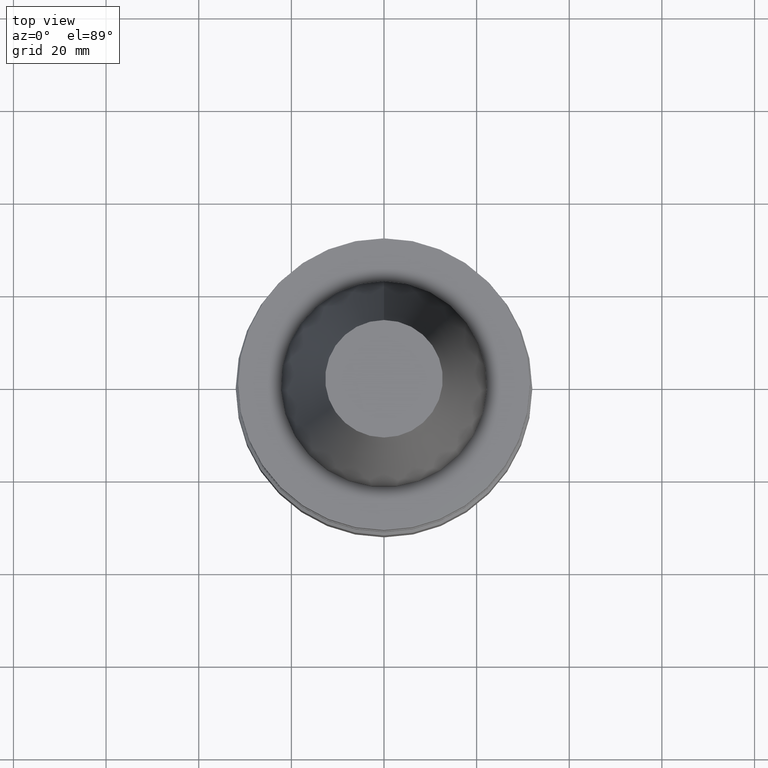
[diagram: clean part render]
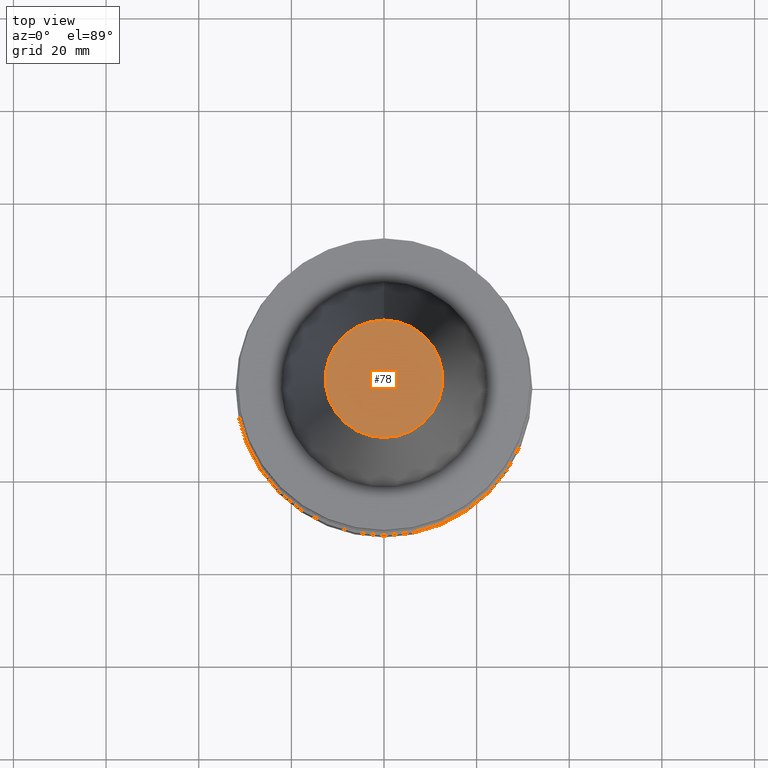
[diagram: same view with one face highlighted and labeled with its STEP entity id]
A machine part, top view. The second image highlights one B-rep face of the part: STEP entity #78.
In plain terms, the highlighted planar face has unit normal (-0, -0, 1).
Its self-contained STEP definition (entity closure, byte-faithful):
#78=ADVANCED_FACE('',(#99),#100,.T.);
#99=FACE_OUTER_BOUND('',#142,.T.);
#100=PLANE('',#143);
#142=EDGE_LOOP('',(#191));
#143=AXIS2_PLACEMENT_3D('',#192,#193,#194);
#191=ORIENTED_EDGE('',*,*,#253,.T.);
#192=CARTESIAN_POINT('',(-4.00459503321185E-015,6.34375044925611,65.4));
#193=DIRECTION('',(-6.12323399573677E-017,-1.22464679914735E-016,1.0));
#194=DIRECTION('',(-1.23259516440783E-032,1.0,1.22464679914735E-016));
#253=EDGE_CURVE('',#270,#270,#271,.T.);
#270=VERTEX_POINT('',#298);
#271=CIRCLE('',#299,12.6875008985122);
#298=CARTESIAN_POINT('',(-4.00459503321185E-015,12.6875008985122,65.4));
#299=AXIS2_PLACEMENT_3D('',#329,#330,#331);
#329=CARTESIAN_POINT('',(-4.00459503321185E-015,-8.00919006642369E-015,65.4));
#330=DIRECTION('',(-6.12323399573677E-017,-1.22464679914735E-016,1.0));
#331=DIRECTION('',(-1.23259516440783E-032,1.0,1.22464679914735E-016));